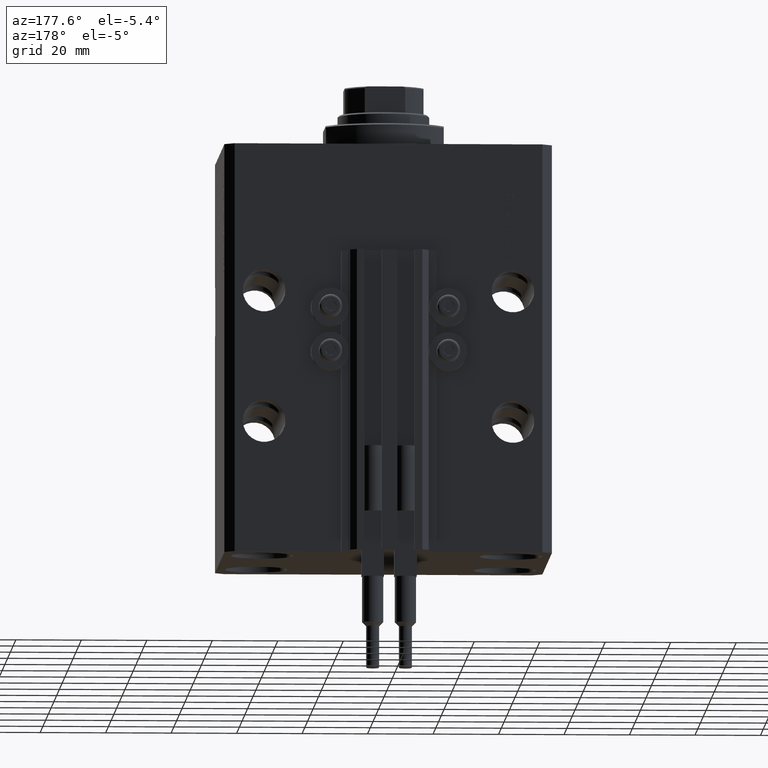
[diagram: clean part render]
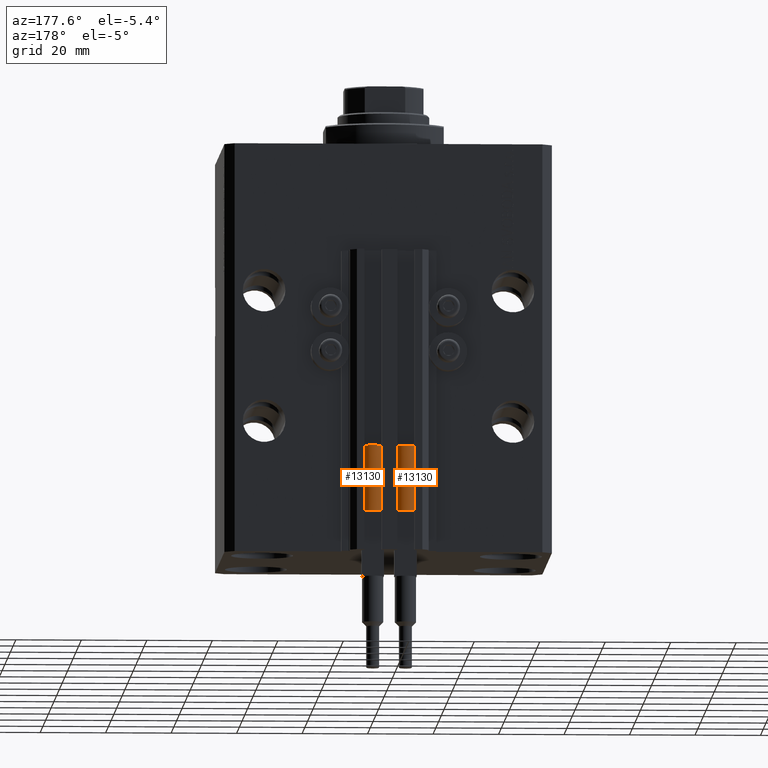
[diagram: same view with one multi-face feature highlighted, each face labeled with its STEP entity id]
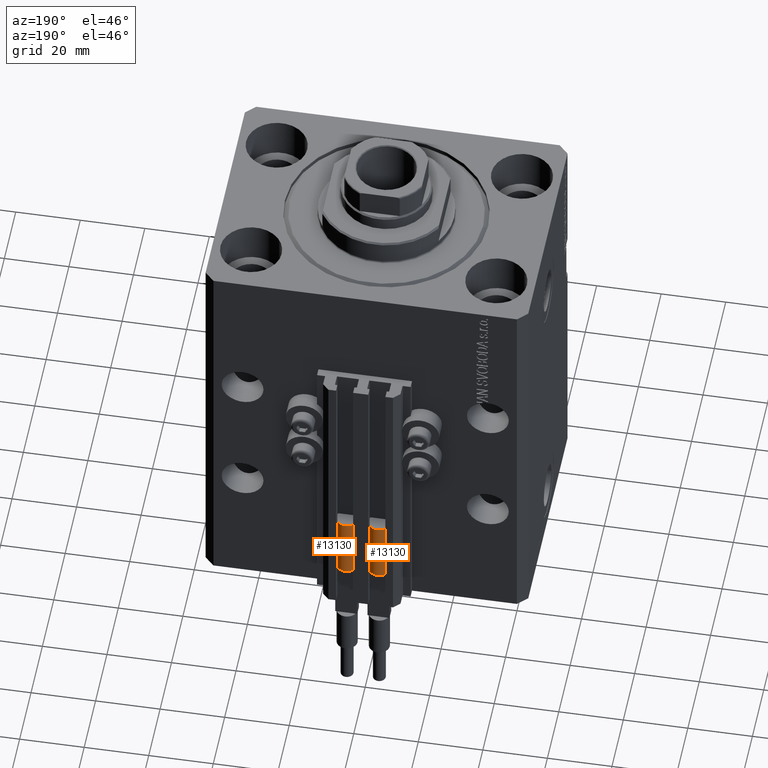
[diagram: same view with one multi-face feature highlighted, each face labeled with its STEP entity id]
A machine part, auxiliary view. The highlighted faces form ONE feature: a constant-radius fillet chain: 2 tangent blend faces with common blend radius 3.4 mm. The faces share edges in the B-rep.
A second angle (auxiliary view) of the same feature is appended — it is thin or edge-on in the first view.
Their STEP definitions:
[1] entity #13130 (Cylinder):
#314 = DIRECTION ( 'NONE',  ( -0.000000000000000000, -0.000000000000000000, -1.000000000000000000 ) ) ;
#1969 = DIRECTION ( 'NONE',  ( 0.000000000000000000, 0.000000000000000000, 1.000000000000000000 ) ) ;
#3554 = EDGE_CURVE ( 'NONE', #37654, #28826, #5016, .T. ) ;
#3701 = ORIENTED_EDGE ( 'NONE', *, *, #6425, .F. ) ;
#4708 = ORIENTED_EDGE ( 'NONE', *, *, #3554, .T. ) ;
#4890 = EDGE_CURVE ( 'NONE', #44217, #37654, #21688, .T. ) ;
#5016 = CIRCLE ( 'NONE', #46153, 3.400000000000000355 ) ;
#5686 = DIRECTION ( 'NONE',  ( 1.000000000000000000, 0.000000000000000000, 0.000000000000000000 ) ) ;
#5906 = AXIS2_PLACEMENT_3D ( 'NONE', #39636, #1969, #5686 ) ;
#6425 = EDGE_CURVE ( 'NONE', #43520, #31158, #39163, .T. ) ;
#8826 = DIRECTION ( 'NONE',  ( 0.000000000000000000, 0.000000000000000000, 1.000000000000000000 ) ) ;
#9505 = CARTESIAN_POINT ( 'NONE',  ( -3.399999999999999467, -4.915049848600952119E-16, 20.00000000000000000 ) ) ;
#9954 = AXIS2_PLACEMENT_3D ( 'NONE', #23111, #11453, #30298 ) ;
#10865 = EDGE_CURVE ( 'NONE', #44217, #34277, #22656, .T. ) ;
#11453 = DIRECTION ( 'NONE',  ( 0.000000000000000000, 0.000000000000000000, 1.000000000000000000 ) ) ;
#13097 = ORIENTED_EDGE ( 'NONE', *, *, #13386, .F. ) ;
#13130 = ADVANCED_FACE ( 'NONE', ( #18432 ), #34273, .T. ) ;
#13386 = EDGE_CURVE ( 'NONE', #31158, #28826, #41643, .T. ) ;
#14034 = CIRCLE ( 'NONE', #40945, 3.400000000000000355 ) ;
#14249 = CARTESIAN_POINT ( 'NONE',  ( 3.400000000000000355, 4.163799117101001052E-16, 0.000000000000000000 ) ) ;
#18262 = AXIS2_PLACEMENT_3D ( 'NONE', #23377, #314, #23128 ) ;
#18432 = FACE_OUTER_BOUND ( 'NONE', #48289, .T. ) ;
#19288 = CARTESIAN_POINT ( 'NONE',  ( -3.051229260478471428, 1.500000000000000000, 20.00000000000000000 ) ) ;
#21497 = DIRECTION ( 'NONE',  ( 0.000000000000000000, 0.000000000000000000, 1.000000000000000000 ) ) ;
#21688 = LINE ( 'NONE', #37773, #35913 ) ;
#22656 = CIRCLE ( 'NONE', #9954, 3.400000000000000355 ) ;
#23111 = CARTESIAN_POINT ( 'NONE',  ( 0.000000000000000000, 0.000000000000000000, 20.00000000000000000 ) ) ;
#23128 = DIRECTION ( 'NONE',  ( -1.000000000000000000, 0.000000000000000000, 0.000000000000000000 ) ) ;
#23377 = CARTESIAN_POINT ( 'NONE',  ( 0.000000000000000000, 0.000000000000000000, 20.00000000000000000 ) ) ;
#23970 = DIRECTION ( 'NONE',  ( 1.000000000000000000, 0.000000000000000000, 0.000000000000000000 ) ) ;
#24983 = DIRECTION ( 'NONE',  ( 1.000000000000000000, 0.000000000000000000, 0.000000000000000000 ) ) ;
#25899 = DIRECTION ( 'NONE',  ( -0.000000000000000000, -0.000000000000000000, -1.000000000000000000 ) ) ;
#26951 = ORIENTED_EDGE ( 'NONE', *, *, #34850, .F. ) ;
#26956 = ORIENTED_EDGE ( 'NONE', *, *, #10865, .F. ) ;
#27238 = ORIENTED_EDGE ( 'NONE', *, *, #4890, .T. ) ;
#28826 = VERTEX_POINT ( 'NONE', #42430 ) ;
#29256 = CARTESIAN_POINT ( 'NONE',  ( 3.051229260478471428, 1.500000000000000000, 20.00000000000000000 ) ) ;
#30113 = VECTOR ( 'NONE', #33474, 1000.000000000000000 ) ;
#30298 = DIRECTION ( 'NONE',  ( 1.000000000000000000, 0.000000000000000000, 0.000000000000000000 ) ) ;
#31158 = VERTEX_POINT ( 'NONE', #9505 ) ;
#33474 = DIRECTION ( 'NONE',  ( -0.000000000000000000, -0.000000000000000000, -1.000000000000000000 ) ) ;
#34273 = CYLINDRICAL_SURFACE ( 'NONE', #18262, 3.400000000000000355 ) ;
#34277 = VERTEX_POINT ( 'NONE', #29256 ) ;
#34850 = EDGE_CURVE ( 'NONE', #34277, #43520, #14034, .T. ) ;
#35913 = VECTOR ( 'NONE', #25899, 1000.000000000000000 ) ;
#37654 = VERTEX_POINT ( 'NONE', #14249 ) ;
#37773 = CARTESIAN_POINT ( 'NONE',  ( 3.400000000000000355, 4.163799117101001052E-16, 20.00000000000000000 ) ) ;
#38423 = CARTESIAN_POINT ( 'NONE',  ( -3.400000000000000355, 0.000000000000000000, 20.00000000000000000 ) ) ;
#39163 = CIRCLE ( 'NONE', #5906, 3.400000000000000355 ) ;
#39636 = CARTESIAN_POINT ( 'NONE',  ( 0.000000000000000000, 0.000000000000000000, 20.00000000000000000 ) ) ;
#40945 = AXIS2_PLACEMENT_3D ( 'NONE', #42779, #8826, #23970 ) ;
#41643 = LINE ( 'NONE', #38423, #30113 ) ;
#42430 = CARTESIAN_POINT ( 'NONE',  ( -3.400000000000000355, 0.000000000000000000, 0.000000000000000000 ) ) ;
#42779 = CARTESIAN_POINT ( 'NONE',  ( 0.000000000000000000, 0.000000000000000000, 20.00000000000000000 ) ) ;
#43520 = VERTEX_POINT ( 'NONE', #19288 ) ;
#44217 = VERTEX_POINT ( 'NONE', #45424 ) ;
#45424 = CARTESIAN_POINT ( 'NONE',  ( 3.400000000000000355, 0.000000000000000000, 20.00000000000000000 ) ) ;
#46153 = AXIS2_PLACEMENT_3D ( 'NONE', #47505, #21497, #24983 ) ;
#47505 = CARTESIAN_POINT ( 'NONE',  ( 0.000000000000000000, 0.000000000000000000, 0.000000000000000000 ) ) ;
#48289 = EDGE_LOOP ( 'NONE', ( #26956, #27238, #4708, #13097, #3701, #26951 ) ) ;
[2] entity #13130 (Cylinder):
#314 = DIRECTION ( 'NONE',  ( -0.000000000000000000, -0.000000000000000000, -1.000000000000000000 ) ) ;
#1969 = DIRECTION ( 'NONE',  ( 0.000000000000000000, 0.000000000000000000, 1.000000000000000000 ) ) ;
#3554 = EDGE_CURVE ( 'NONE', #37654, #28826, #5016, .T. ) ;
#3701 = ORIENTED_EDGE ( 'NONE', *, *, #6425, .F. ) ;
#4708 = ORIENTED_EDGE ( 'NONE', *, *, #3554, .T. ) ;
#4890 = EDGE_CURVE ( 'NONE', #44217, #37654, #21688, .T. ) ;
#5016 = CIRCLE ( 'NONE', #46153, 3.400000000000000355 ) ;
#5686 = DIRECTION ( 'NONE',  ( 1.000000000000000000, 0.000000000000000000, 0.000000000000000000 ) ) ;
#5906 = AXIS2_PLACEMENT_3D ( 'NONE', #39636, #1969, #5686 ) ;
#6425 = EDGE_CURVE ( 'NONE', #43520, #31158, #39163, .T. ) ;
#8826 = DIRECTION ( 'NONE',  ( 0.000000000000000000, 0.000000000000000000, 1.000000000000000000 ) ) ;
#9505 = CARTESIAN_POINT ( 'NONE',  ( -3.399999999999999467, -4.915049848600952119E-16, 20.00000000000000000 ) ) ;
#9954 = AXIS2_PLACEMENT_3D ( 'NONE', #23111, #11453, #30298 ) ;
#10865 = EDGE_CURVE ( 'NONE', #44217, #34277, #22656, .T. ) ;
#11453 = DIRECTION ( 'NONE',  ( 0.000000000000000000, 0.000000000000000000, 1.000000000000000000 ) ) ;
#13097 = ORIENTED_EDGE ( 'NONE', *, *, #13386, .F. ) ;
#13130 = ADVANCED_FACE ( 'NONE', ( #18432 ), #34273, .T. ) ;
#13386 = EDGE_CURVE ( 'NONE', #31158, #28826, #41643, .T. ) ;
#14034 = CIRCLE ( 'NONE', #40945, 3.400000000000000355 ) ;
#14249 = CARTESIAN_POINT ( 'NONE',  ( 3.400000000000000355, 4.163799117101001052E-16, 0.000000000000000000 ) ) ;
#18262 = AXIS2_PLACEMENT_3D ( 'NONE', #23377, #314, #23128 ) ;
#18432 = FACE_OUTER_BOUND ( 'NONE', #48289, .T. ) ;
#19288 = CARTESIAN_POINT ( 'NONE',  ( -3.051229260478471428, 1.500000000000000000, 20.00000000000000000 ) ) ;
#21497 = DIRECTION ( 'NONE',  ( 0.000000000000000000, 0.000000000000000000, 1.000000000000000000 ) ) ;
#21688 = LINE ( 'NONE', #37773, #35913 ) ;
#22656 = CIRCLE ( 'NONE', #9954, 3.400000000000000355 ) ;
#23111 = CARTESIAN_POINT ( 'NONE',  ( 0.000000000000000000, 0.000000000000000000, 20.00000000000000000 ) ) ;
#23128 = DIRECTION ( 'NONE',  ( -1.000000000000000000, 0.000000000000000000, 0.000000000000000000 ) ) ;
#23377 = CARTESIAN_POINT ( 'NONE',  ( 0.000000000000000000, 0.000000000000000000, 20.00000000000000000 ) ) ;
#23970 = DIRECTION ( 'NONE',  ( 1.000000000000000000, 0.000000000000000000, 0.000000000000000000 ) ) ;
#24983 = DIRECTION ( 'NONE',  ( 1.000000000000000000, 0.000000000000000000, 0.000000000000000000 ) ) ;
#25899 = DIRECTION ( 'NONE',  ( -0.000000000000000000, -0.000000000000000000, -1.000000000000000000 ) ) ;
#26951 = ORIENTED_EDGE ( 'NONE', *, *, #34850, .F. ) ;
#26956 = ORIENTED_EDGE ( 'NONE', *, *, #10865, .F. ) ;
#27238 = ORIENTED_EDGE ( 'NONE', *, *, #4890, .T. ) ;
#28826 = VERTEX_POINT ( 'NONE', #42430 ) ;
#29256 = CARTESIAN_POINT ( 'NONE',  ( 3.051229260478471428, 1.500000000000000000, 20.00000000000000000 ) ) ;
#30113 = VECTOR ( 'NONE', #33474, 1000.000000000000000 ) ;
#30298 = DIRECTION ( 'NONE',  ( 1.000000000000000000, 0.000000000000000000, 0.000000000000000000 ) ) ;
#31158 = VERTEX_POINT ( 'NONE', #9505 ) ;
#33474 = DIRECTION ( 'NONE',  ( -0.000000000000000000, -0.000000000000000000, -1.000000000000000000 ) ) ;
#34273 = CYLINDRICAL_SURFACE ( 'NONE', #18262, 3.400000000000000355 ) ;
#34277 = VERTEX_POINT ( 'NONE', #29256 ) ;
#34850 = EDGE_CURVE ( 'NONE', #34277, #43520, #14034, .T. ) ;
#35913 = VECTOR ( 'NONE', #25899, 1000.000000000000000 ) ;
#37654 = VERTEX_POINT ( 'NONE', #14249 ) ;
#37773 = CARTESIAN_POINT ( 'NONE',  ( 3.400000000000000355, 4.163799117101001052E-16, 20.00000000000000000 ) ) ;
#38423 = CARTESIAN_POINT ( 'NONE',  ( -3.400000000000000355, 0.000000000000000000, 20.00000000000000000 ) ) ;
#39163 = CIRCLE ( 'NONE', #5906, 3.400000000000000355 ) ;
#39636 = CARTESIAN_POINT ( 'NONE',  ( 0.000000000000000000, 0.000000000000000000, 20.00000000000000000 ) ) ;
#40945 = AXIS2_PLACEMENT_3D ( 'NONE', #42779, #8826, #23970 ) ;
#41643 = LINE ( 'NONE', #38423, #30113 ) ;
#42430 = CARTESIAN_POINT ( 'NONE',  ( -3.400000000000000355, 0.000000000000000000, 0.000000000000000000 ) ) ;
#42779 = CARTESIAN_POINT ( 'NONE',  ( 0.000000000000000000, 0.000000000000000000, 20.00000000000000000 ) ) ;
#43520 = VERTEX_POINT ( 'NONE', #19288 ) ;
#44217 = VERTEX_POINT ( 'NONE', #45424 ) ;
#45424 = CARTESIAN_POINT ( 'NONE',  ( 3.400000000000000355, 0.000000000000000000, 20.00000000000000000 ) ) ;
#46153 = AXIS2_PLACEMENT_3D ( 'NONE', #47505, #21497, #24983 ) ;
#47505 = CARTESIAN_POINT ( 'NONE',  ( 0.000000000000000000, 0.000000000000000000, 0.000000000000000000 ) ) ;
#48289 = EDGE_LOOP ( 'NONE', ( #26956, #27238, #4708, #13097, #3701, #26951 ) ) ;